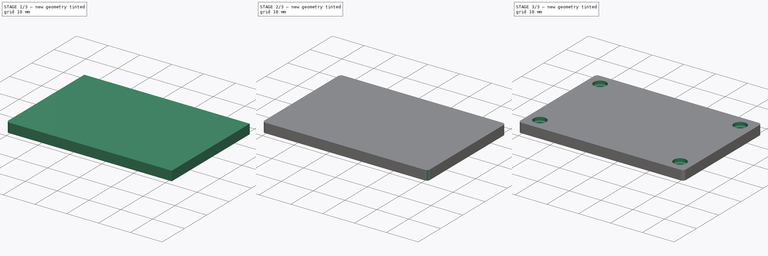
[diagram: build sequence overview — one tinted view per stage of 3, left to right]
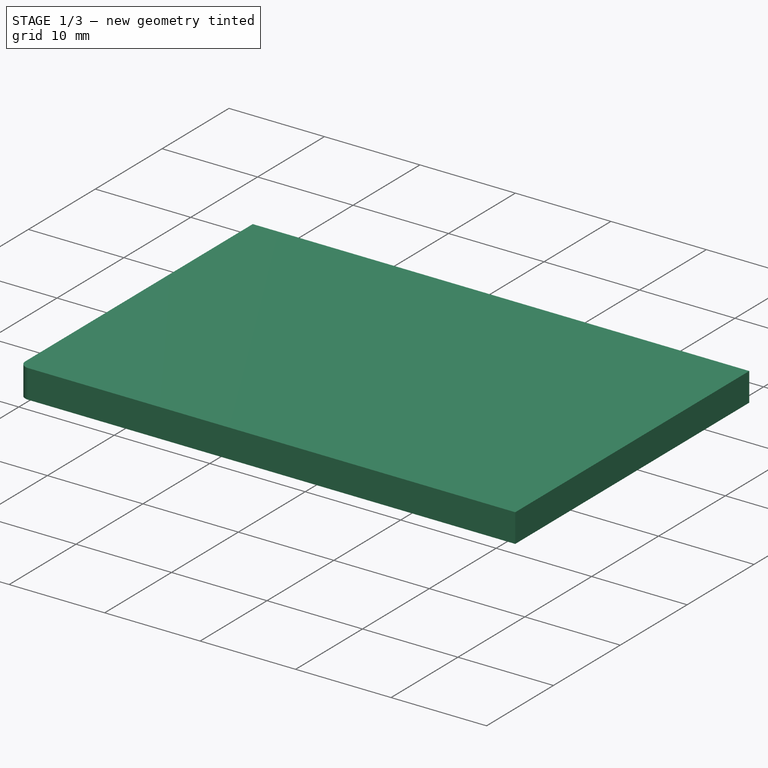
[diagram: stage 1 of 3 — iso view after this stage's code; geometry added in this stage tinted green]
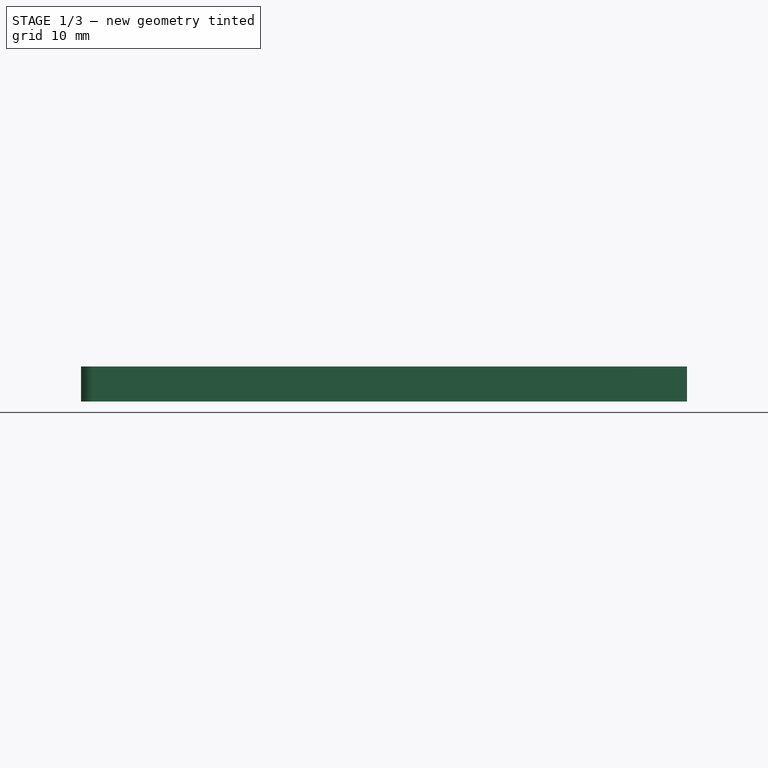
[diagram: stage 1 of 3 — front view after this stage's code; geometry added in this stage tinted green]
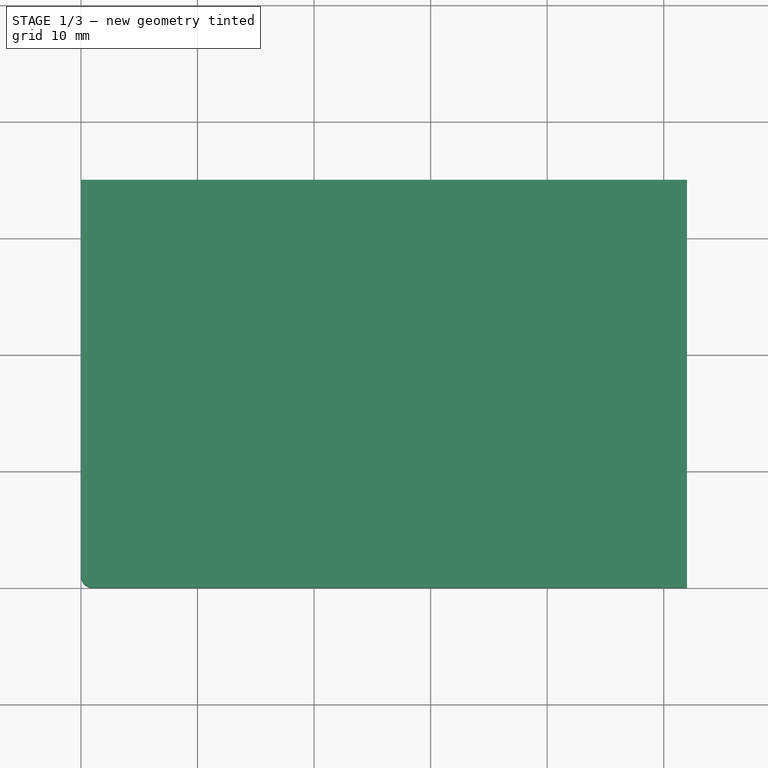
[diagram: stage 1 of 3 — top view after this stage's code; geometry added in this stage tinted green]
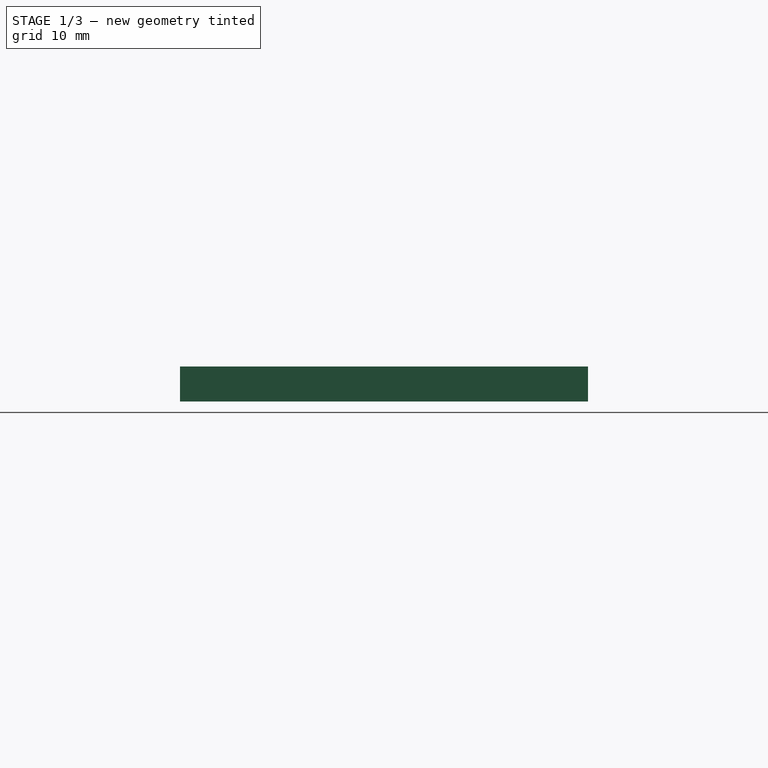
[diagram: stage 1 of 3 — right view after this stage's code; geometry added in this stage tinted green]
FCSTD DOCUMENT  (FreeCAD 0.16R6706 (Git))
Label: iROB-EA_Tapa_RTC
License: All rights reserved
LicenseURL: http://en.wikipedia.org/wiki/All_rights_reserved
objects: PartDesign::Fillet×4, Sketcher::SketchObject×3, PartDesign::Pocket×2, PartDesign::Pad×1
note: 13 computed .brp shape members not serialized (recipe doc carries the construction recipe); baked Part::Feature solids carry a one-line shape summary decoded from their .brp

FEATURE [Sketcher::SketchObject] Sketch  label="Base"
  sketch-geometry (4):
    g0: LineSegment StartX=0 StartY=35 StartZ=0 EndX=52 EndY=35 EndZ=0
    g1: LineSegment StartX=52 StartY=35 StartZ=0 EndX=52 EndY=0 EndZ=0
    g2: LineSegment StartX=52 StartY=0 StartZ=0 EndX=0 EndY=0 EndZ=0
    g3: LineSegment StartX=0 StartY=0 StartZ=0 EndX=0 EndY=35 EndZ=0
  constraints (11):
    c: Coincident(g0,g1)
    c: Coincident(g1,g2)
    c: Coincident(g2,g3)
    c: Coincident(g3,g0)
    c: Horizontal(g0)
    c: Horizontal(g2)
    c: Vertical(g1)
    c: Vertical(g3)
    c: DistanceX(g0,g0) = 52
    c: DistanceY(g3,g3) = 35
    c: Coincident(g-1,g2)
FEATURE [PartDesign::Pad] Pad
  Length = 3
  Length2 = 100
  Sketch = -> Sketch
  Type = 0
FEATURE [PartDesign::Fillet] Fillet
  Base = -> Pad [Edge8]
  Radius = 1
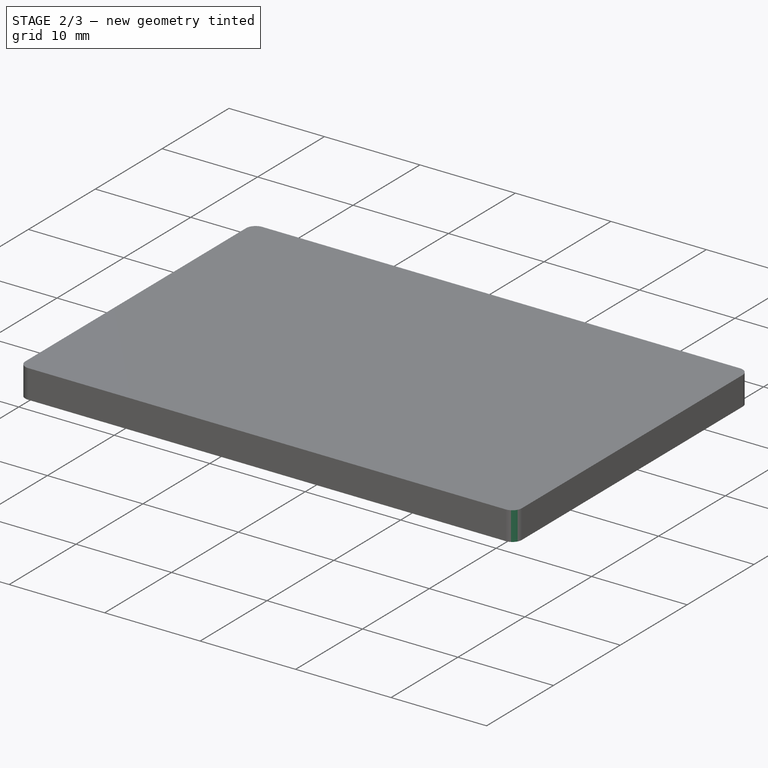
[diagram: stage 2 of 3 — iso view after this stage's code; geometry added in this stage tinted green]
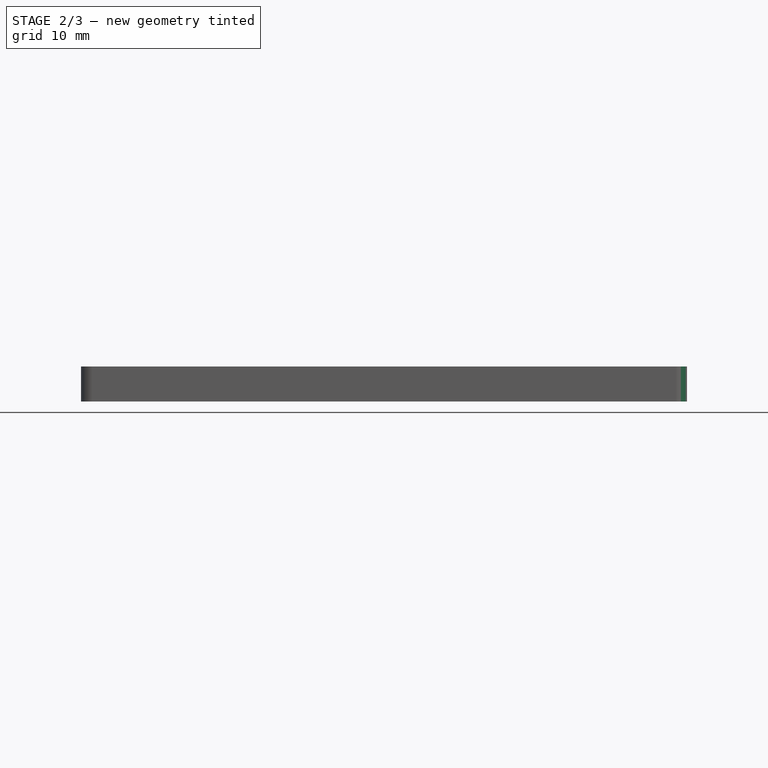
[diagram: stage 2 of 3 — front view after this stage's code; geometry added in this stage tinted green]
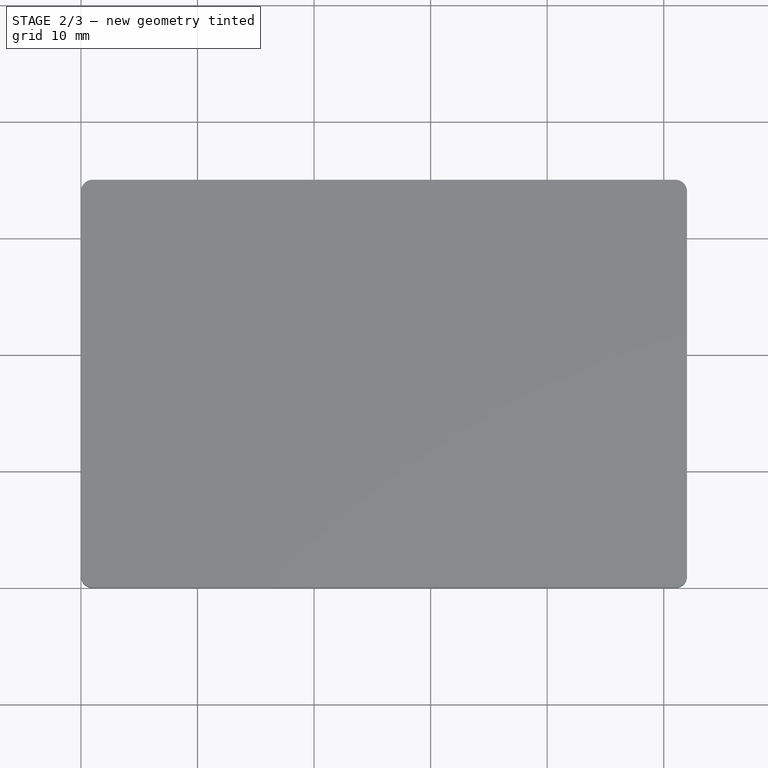
[diagram: stage 2 of 3 — top view after this stage's code; geometry added in this stage tinted green]
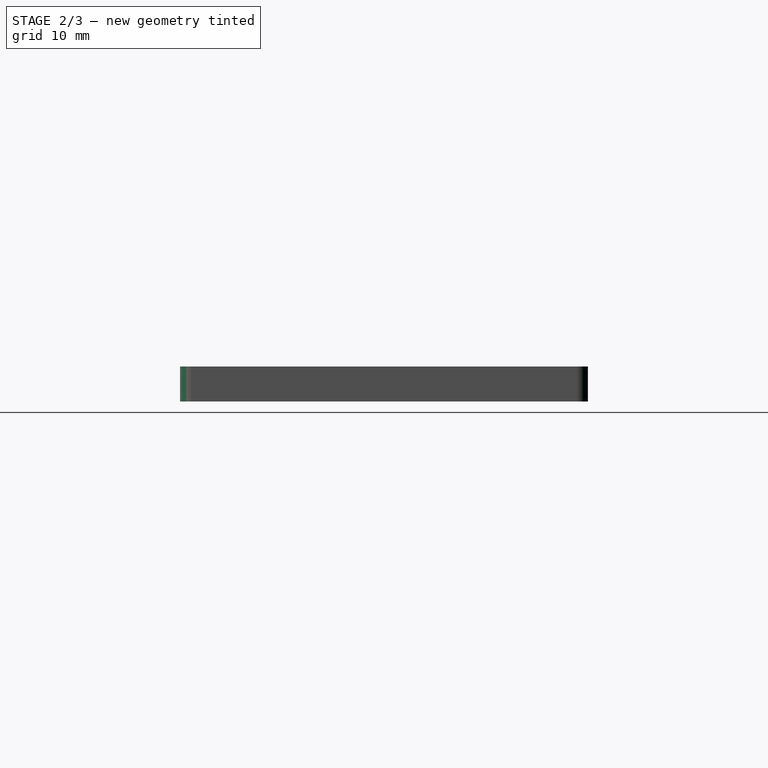
[diagram: stage 2 of 3 — right view after this stage's code; geometry added in this stage tinted green]
FEATURE [PartDesign::Fillet] Fillet001
  Base = -> Fillet [Edge3]
  Radius = 1
FEATURE [PartDesign::Fillet] Fillet002
  Base = -> Fillet001 [Edge17]
  Radius = 1
FEATURE [PartDesign::Fillet] Fillet003
  Base = -> Fillet002 [Edge15]
  Radius = 1
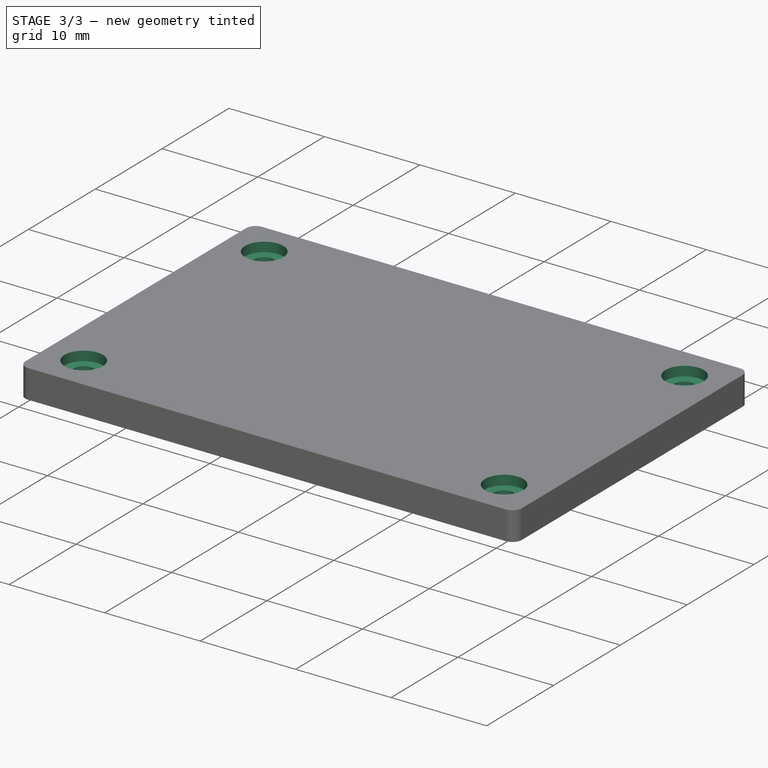
[diagram: stage 3 of 3 — iso view after this stage's code; geometry added in this stage tinted green]
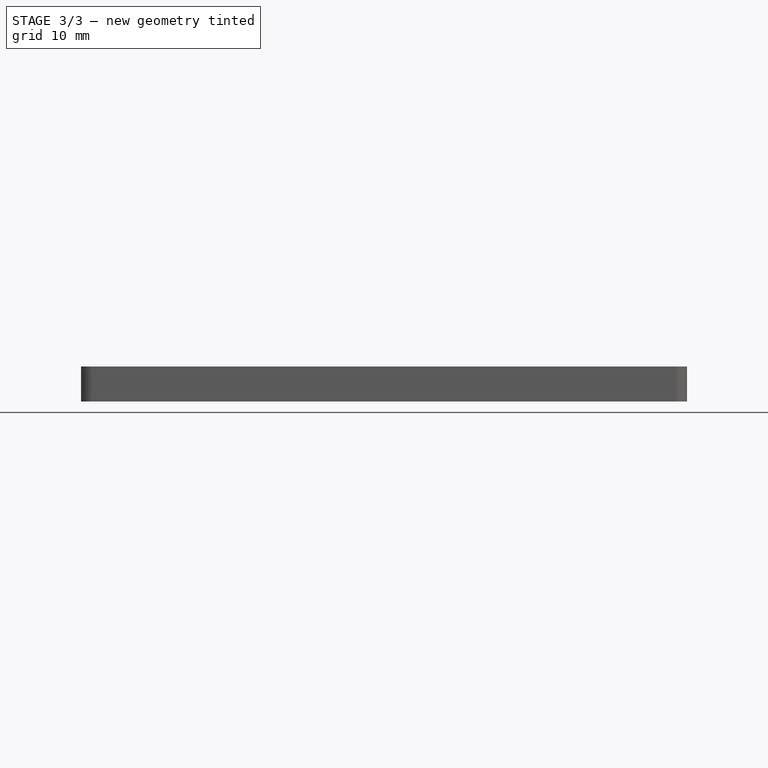
[diagram: stage 3 of 3 — front view after this stage's code; geometry added in this stage tinted green]
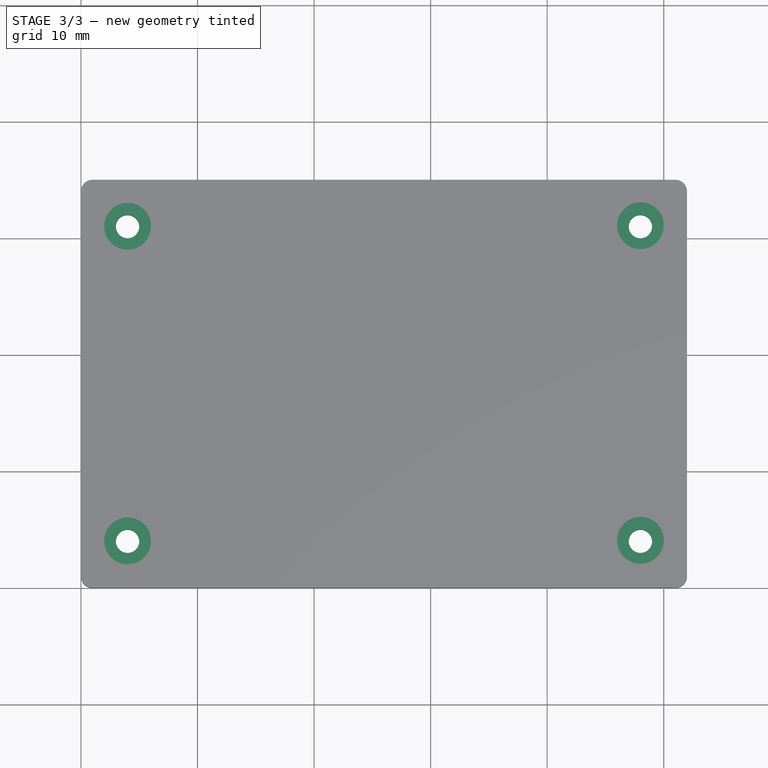
[diagram: stage 3 of 3 — top view after this stage's code; geometry added in this stage tinted green]
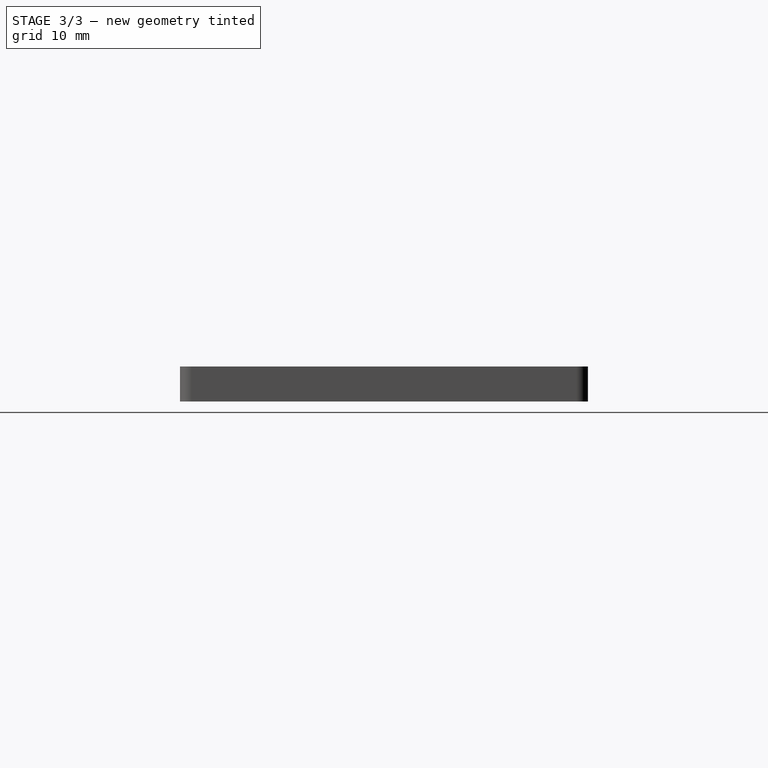
[diagram: stage 3 of 3 — right view after this stage's code; geometry added in this stage tinted green]
FEATURE [Sketcher::SketchObject] Sketch001  label="Tornillos"
  Placement = pos=(0,0,3) rot=(0,0,1;0rad)
  Support = -> Fillet003 [Face10]
  sketch-geometry (4):
    g0: Circle CenterX=4 CenterY=31 CenterZ=0 NormalX=0 NormalY=0 NormalZ=1 Radius=1
    g1: Circle CenterX=48 CenterY=31 CenterZ=0 NormalX=0 NormalY=0 NormalZ=1 Radius=1
    g2: Circle CenterX=4 CenterY=4 CenterZ=0 NormalX=0 NormalY=0 NormalZ=1 Radius=1
    g3: Circle CenterX=48 CenterY=4 CenterZ=0 NormalX=0 NormalY=0 NormalZ=1 Radius=1
  constraints (12):
    c: Radius(g0) = 1
    c: Radius(g1) = 1
    c: DistanceY(g1,g0) = 0
    c: DistanceX(g0,g1) = 44
    c: Radius(g2) = 1
    c: Radius(g3) = 1
    c: DistanceY(g3,g2) = 0
    c: DistanceX(g2,g0) = 0
    c: DistanceX(g3,g1) = 0
    c: DistanceY(g2,g0) = 27
    c: DistanceY(g-1,g2) = 4
    c: DistanceX(g-1,g2) = 4
FEATURE [PartDesign::Pocket] Pocket
  Length = 5
  Sketch = -> Sketch001
  Type = 0
FEATURE [Sketcher::SketchObject] Sketch002  label="Tornillos_Protector"
  Placement = pos=(0,0,3) rot=(0,0,1;0rad)
  Support = -> Pocket [Face14]
  sketch-geometry (4):
    g0: Circle CenterX=4 CenterY=31 CenterZ=0 NormalX=0 NormalY=0 NormalZ=1 Radius=2
    g1: Circle CenterX=4 CenterY=4 CenterZ=0 NormalX=0 NormalY=0 NormalZ=1 Radius=2
    g2: Circle CenterX=48 CenterY=31.0488 CenterZ=0 NormalX=0 NormalY=0 NormalZ=1 Radius=2
    g3: Circle CenterX=48 CenterY=4.04882 CenterZ=0 NormalX=0 NormalY=0 NormalZ=1 Radius=2
  constraints (11):
    c: Radius(g0) = 2
    c: Radius(g1) = 2
    c: DistanceX(g1,g0) = 0
    c: DistanceY(g1,g0) = 27
    c: Radius(g2) = 2
    c: Radius(g3) = 2
    c: DistanceX(g2,g3) = 0
    c: DistanceY(g3,g2) = 27
    c: DistanceX(g0,g2) = 44
    c: DistanceX(g-1,g1) = 4
    c: DistanceY(g-1,g1) = 4
FEATURE [PartDesign::Pocket] Pocket001
  Length = 1
  Sketch = -> Sketch002
  Type = 0
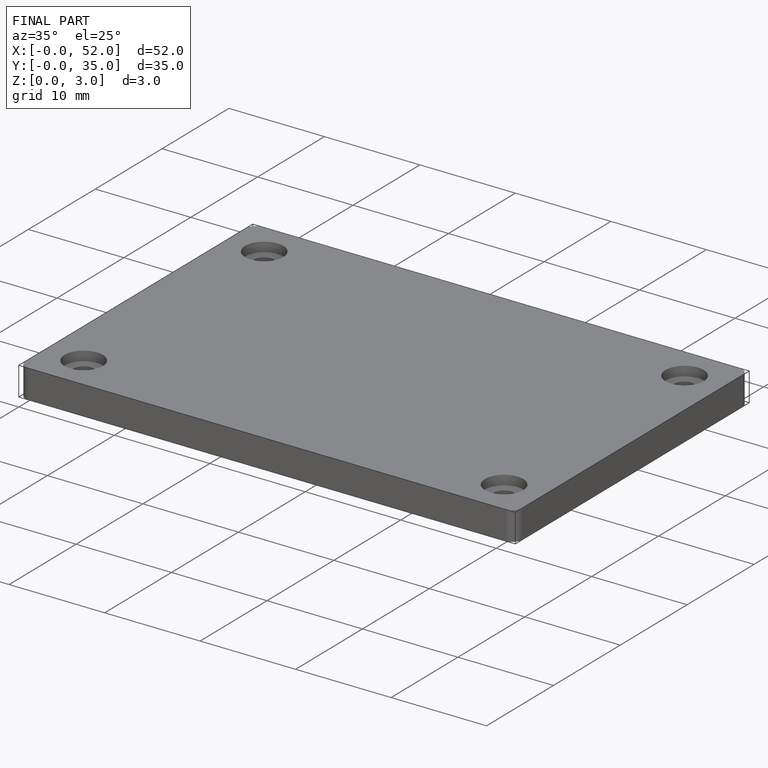
[diagram: finished part — iso view with bounding-box wireframe]
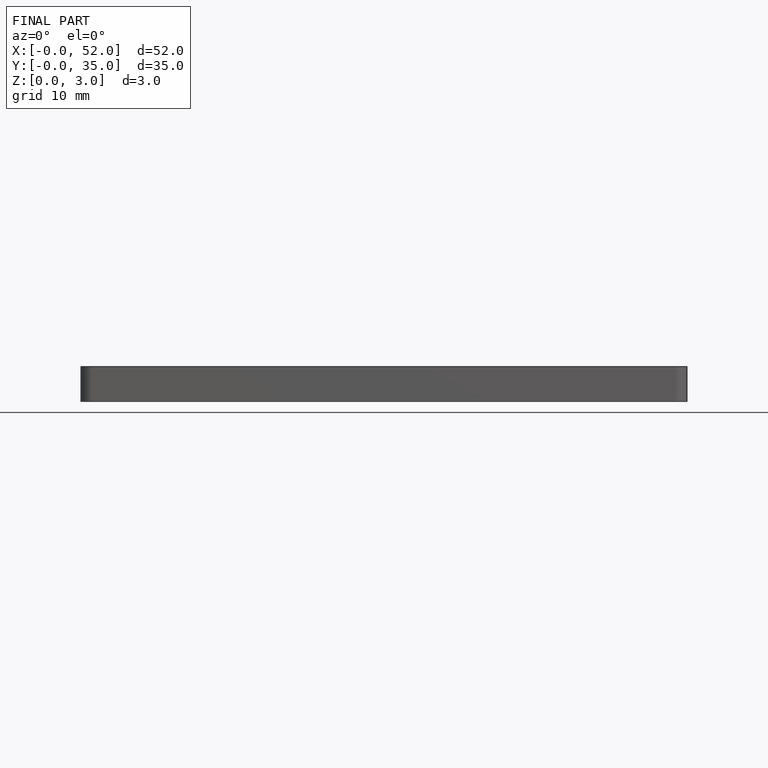
[diagram: finished part — front view with bounding-box wireframe]
